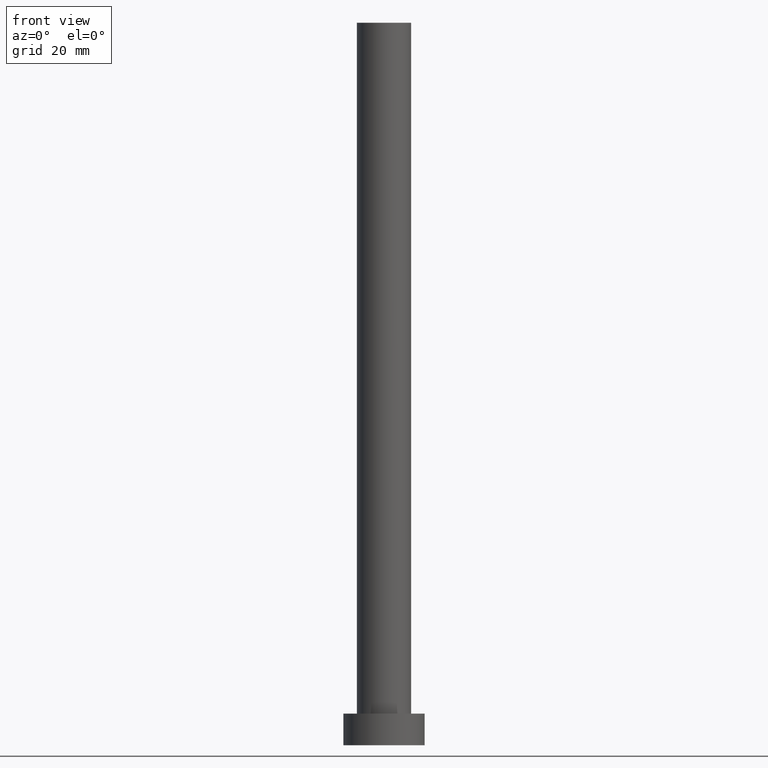
[diagram: clean part render]
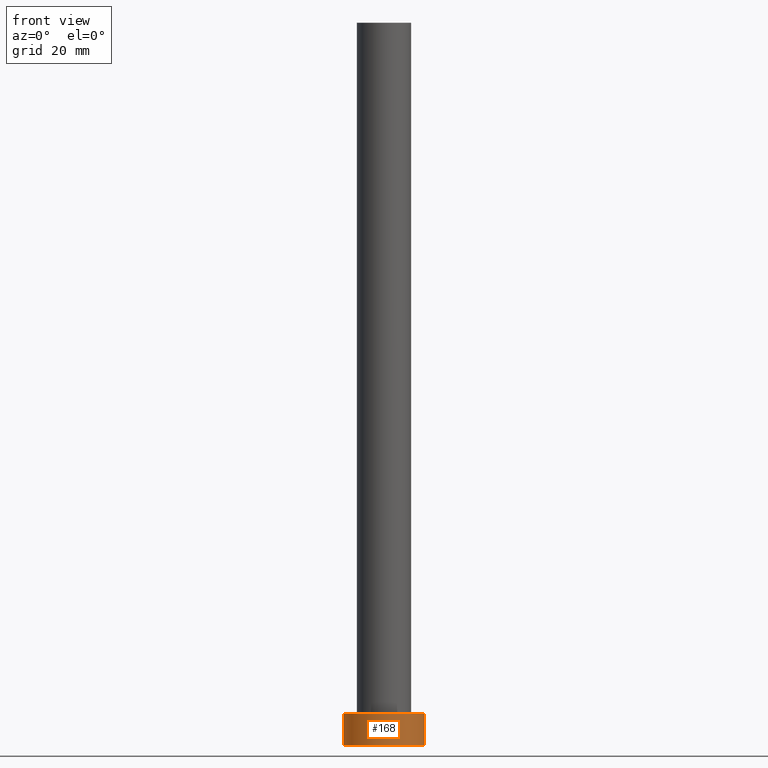
[diagram: same view with one face highlighted and labeled with its STEP entity id]
A machine part, front view. The second image highlights one B-rep face of the part: STEP entity #168.
In plain terms, the highlighted cylindrical surface (partial cylindrical patch) has radius 9 mm, axis along (-0, -0, -1).
Its self-contained STEP definition (entity closure, byte-faithful):
#4 = CARTESIAN_POINT ( 'NONE',  ( 9.000000000000000000, 1.102182119232617714E-15, 7.000000000000000000 ) ) ;
#13 = CIRCLE ( 'NONE', #22, 9.000000000000000000 ) ;
#22 = AXIS2_PLACEMENT_3D ( 'NONE', #240, #172, #84 ) ;
#24 = ORIENTED_EDGE ( 'NONE', *, *, #214, .T. ) ;
#26 = ORIENTED_EDGE ( 'NONE', *, *, #228, .F. ) ;
#32 = FACE_OUTER_BOUND ( 'NONE', #223, .T. ) ;
#33 = CARTESIAN_POINT ( 'NONE',  ( -9.000000000000000000, 0.000000000000000000, 7.000000000000000000 ) ) ;
#40 = ORIENTED_EDGE ( 'NONE', *, *, #78, .F. ) ;
#43 = VERTEX_POINT ( 'NONE', #139 ) ;
#46 = CIRCLE ( 'NONE', #94, 9.000000000000000000 ) ;
#48 = DIRECTION ( 'NONE',  ( -1.000000000000000000, 0.000000000000000000, 0.000000000000000000 ) ) ;
#67 = CARTESIAN_POINT ( 'NONE',  ( 9.000000000000000000, 1.102182119232617714E-15, 0.000000000000000000 ) ) ;
#68 = DIRECTION ( 'NONE',  ( 0.000000000000000000, 0.000000000000000000, 1.000000000000000000 ) ) ;
#78 = EDGE_CURVE ( 'NONE', #43, #182, #112, .T. ) ;
#84 = DIRECTION ( 'NONE',  ( 1.000000000000000000, 0.000000000000000000, 0.000000000000000000 ) ) ;
#85 = DIRECTION ( 'NONE',  ( -0.000000000000000000, -0.000000000000000000, -1.000000000000000000 ) ) ;
#86 = LINE ( 'NONE', #188, #233 ) ;
#94 = AXIS2_PLACEMENT_3D ( 'NONE', #125, #68, #129 ) ;
#101 = ORIENTED_EDGE ( 'NONE', *, *, #117, .T. ) ;
#112 = LINE ( 'NONE', #4, #137 ) ;
#117 = EDGE_CURVE ( 'NONE', #201, #182, #13, .T. ) ;
#125 = CARTESIAN_POINT ( 'NONE',  ( 0.000000000000000000, 0.000000000000000000, 7.000000000000000000 ) ) ;
#128 = DIRECTION ( 'NONE',  ( -0.000000000000000000, -0.000000000000000000, -1.000000000000000000 ) ) ;
#129 = DIRECTION ( 'NONE',  ( 1.000000000000000000, 0.000000000000000000, 0.000000000000000000 ) ) ;
#137 = VECTOR ( 'NONE', #85, 1000.000000000000000 ) ;
#139 = CARTESIAN_POINT ( 'NONE',  ( 9.000000000000000000, 1.102182119232617714E-15, 7.000000000000000000 ) ) ;
#153 = AXIS2_PLACEMENT_3D ( 'NONE', #224, #166, #48 ) ;
#166 = DIRECTION ( 'NONE',  ( -0.000000000000000000, -0.000000000000000000, -1.000000000000000000 ) ) ;
#168 = ADVANCED_FACE ( 'NONE', ( #32 ), #186, .T. ) ;
#172 = DIRECTION ( 'NONE',  ( 0.000000000000000000, 0.000000000000000000, 1.000000000000000000 ) ) ;
#182 = VERTEX_POINT ( 'NONE', #67 ) ;
#186 = CYLINDRICAL_SURFACE ( 'NONE', #153, 9.000000000000000000 ) ;
#188 = CARTESIAN_POINT ( 'NONE',  ( -9.000000000000000000, 0.000000000000000000, 7.000000000000000000 ) ) ;
#201 = VERTEX_POINT ( 'NONE', #242 ) ;
#214 = EDGE_CURVE ( 'NONE', #255, #201, #86, .T. ) ;
#223 = EDGE_LOOP ( 'NONE', ( #40, #26, #24, #101 ) ) ;
#224 = CARTESIAN_POINT ( 'NONE',  ( 0.000000000000000000, 0.000000000000000000, 7.000000000000000000 ) ) ;
#228 = EDGE_CURVE ( 'NONE', #255, #43, #46, .T. ) ;
#233 = VECTOR ( 'NONE', #128, 1000.000000000000000 ) ;
#240 = CARTESIAN_POINT ( 'NONE',  ( 0.000000000000000000, 0.000000000000000000, 0.000000000000000000 ) ) ;
#242 = CARTESIAN_POINT ( 'NONE',  ( -9.000000000000000000, 0.000000000000000000, 0.000000000000000000 ) ) ;
#255 = VERTEX_POINT ( 'NONE', #33 ) ;